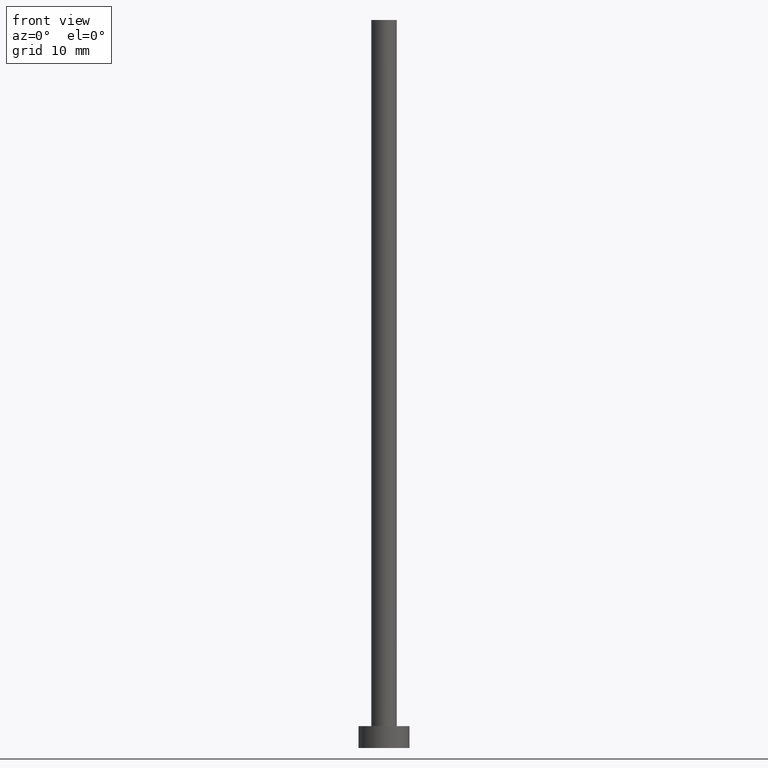
[diagram: clean part render]
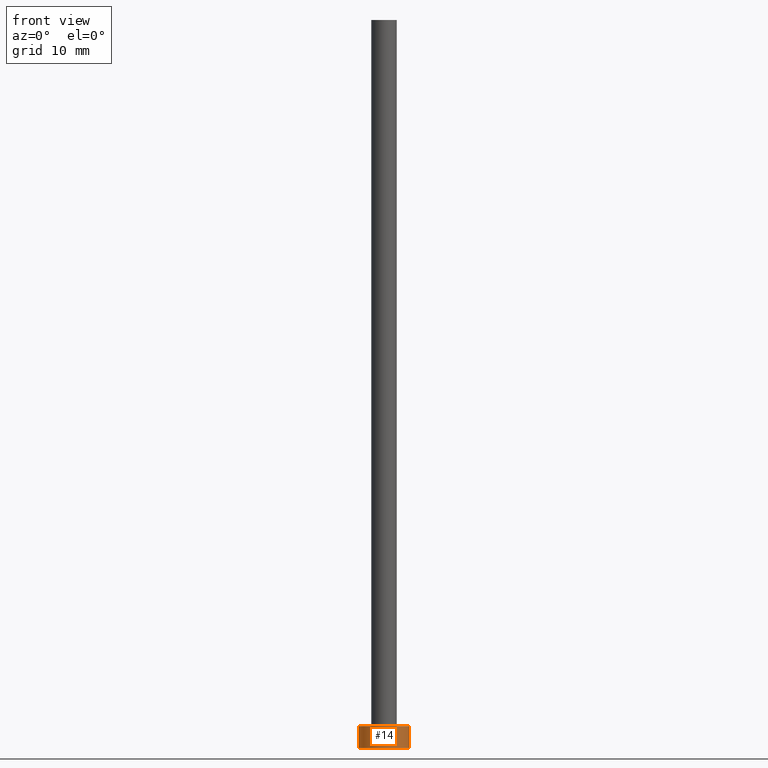
[diagram: same view with one face highlighted and labeled with its STEP entity id]
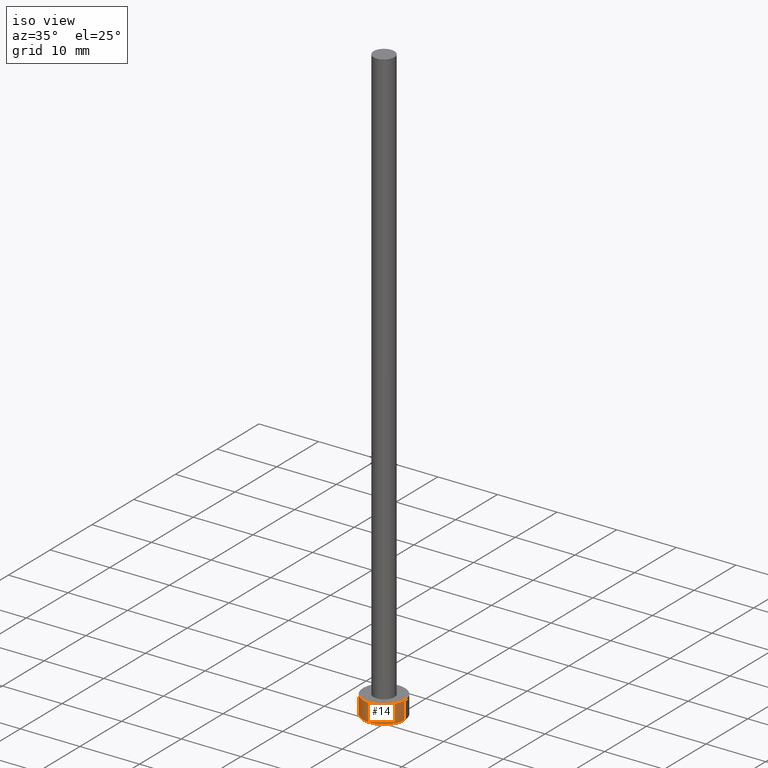
[diagram: same view with one face highlighted and labeled with its STEP entity id]
A machine part, front view. The second image highlights one B-rep face of the part: STEP entity #14.
A second angle (iso view) of the same face is appended — the face is thin or edge-on in the first view.
In plain terms, the highlighted cylindrical surface (edge-blend (fillet) strip) has radius 3.5 mm, axis along (-0, -0, -1).
Its self-contained STEP definition (entity closure, byte-faithful):
#13 = ORIENTED_EDGE ( 'NONE', *, *, #182, .T. ) ;
#14 = ADVANCED_FACE ( 'NONE', ( #206 ), #167, .T. ) ;
#18 = CARTESIAN_POINT ( 'NONE',  ( -3.500000000000000444, 0.000000000000000000, 3.000000000000000000 ) ) ;
#22 = CARTESIAN_POINT ( 'NONE',  ( 0.000000000000000000, 0.000000000000000000, 3.000000000000000000 ) ) ;
#29 = DIRECTION ( 'NONE',  ( 1.000000000000000000, 0.000000000000000000, 0.000000000000000000 ) ) ;
#30 = DIRECTION ( 'NONE',  ( 1.000000000000000000, 0.000000000000000000, 0.000000000000000000 ) ) ;
#39 = EDGE_CURVE ( 'NONE', #91, #63, #248, .T. ) ;
#44 = CARTESIAN_POINT ( 'NONE',  ( 3.500000000000000444, 4.286263797015737088E-16, 3.000000000000000000 ) ) ;
#55 = AXIS2_PLACEMENT_3D ( 'NONE', #198, #212, #30 ) ;
#59 = CIRCLE ( 'NONE', #55, 3.500000000000000444 ) ;
#63 = VERTEX_POINT ( 'NONE', #117 ) ;
#73 = CARTESIAN_POINT ( 'NONE',  ( -3.500000000000000444, 0.000000000000000000, 0.000000000000000000 ) ) ;
#76 = VECTOR ( 'NONE', #120, 1000.000000000000000 ) ;
#91 = VERTEX_POINT ( 'NONE', #194 ) ;
#113 = VERTEX_POINT ( 'NONE', #214 ) ;
#117 = CARTESIAN_POINT ( 'NONE',  ( 3.500000000000000444, 4.286263797015737088E-16, 0.000000000000000000 ) ) ;
#120 = DIRECTION ( 'NONE',  ( -0.000000000000000000, -0.000000000000000000, -1.000000000000000000 ) ) ;
#124 = DIRECTION ( 'NONE',  ( -0.000000000000000000, -0.000000000000000000, -1.000000000000000000 ) ) ;
#126 = ORIENTED_EDGE ( 'NONE', *, *, #238, .T. ) ;
#131 = LINE ( 'NONE', #18, #76 ) ;
#135 = AXIS2_PLACEMENT_3D ( 'NONE', #149, #210, #29 ) ;
#145 = EDGE_LOOP ( 'NONE', ( #244, #209, #13, #126 ) ) ;
#149 = CARTESIAN_POINT ( 'NONE',  ( 0.000000000000000000, 0.000000000000000000, 3.000000000000000000 ) ) ;
#167 = CYLINDRICAL_SURFACE ( 'NONE', #196, 3.500000000000000444 ) ;
#172 = DIRECTION ( 'NONE',  ( -1.000000000000000000, 0.000000000000000000, 0.000000000000000000 ) ) ;
#182 = EDGE_CURVE ( 'NONE', #113, #185, #131, .T. ) ;
#185 = VERTEX_POINT ( 'NONE', #73 ) ;
#190 = EDGE_CURVE ( 'NONE', #113, #91, #251, .T. ) ;
#194 = CARTESIAN_POINT ( 'NONE',  ( 3.500000000000000444, 4.286263797015737088E-16, 3.000000000000000000 ) ) ;
#196 = AXIS2_PLACEMENT_3D ( 'NONE', #22, #221, #172 ) ;
#198 = CARTESIAN_POINT ( 'NONE',  ( 0.000000000000000000, 0.000000000000000000, 0.000000000000000000 ) ) ;
#206 = FACE_OUTER_BOUND ( 'NONE', #145, .T. ) ;
#209 = ORIENTED_EDGE ( 'NONE', *, *, #190, .F. ) ;
#210 = DIRECTION ( 'NONE',  ( 0.000000000000000000, 0.000000000000000000, 1.000000000000000000 ) ) ;
#212 = DIRECTION ( 'NONE',  ( 0.000000000000000000, 0.000000000000000000, 1.000000000000000000 ) ) ;
#214 = CARTESIAN_POINT ( 'NONE',  ( -3.500000000000000444, 0.000000000000000000, 3.000000000000000000 ) ) ;
#221 = DIRECTION ( 'NONE',  ( -0.000000000000000000, -0.000000000000000000, -1.000000000000000000 ) ) ;
#237 = VECTOR ( 'NONE', #124, 1000.000000000000000 ) ;
#238 = EDGE_CURVE ( 'NONE', #185, #63, #59, .T. ) ;
#244 = ORIENTED_EDGE ( 'NONE', *, *, #39, .F. ) ;
#248 = LINE ( 'NONE', #44, #237 ) ;
#251 = CIRCLE ( 'NONE', #135, 3.500000000000000444 ) ;